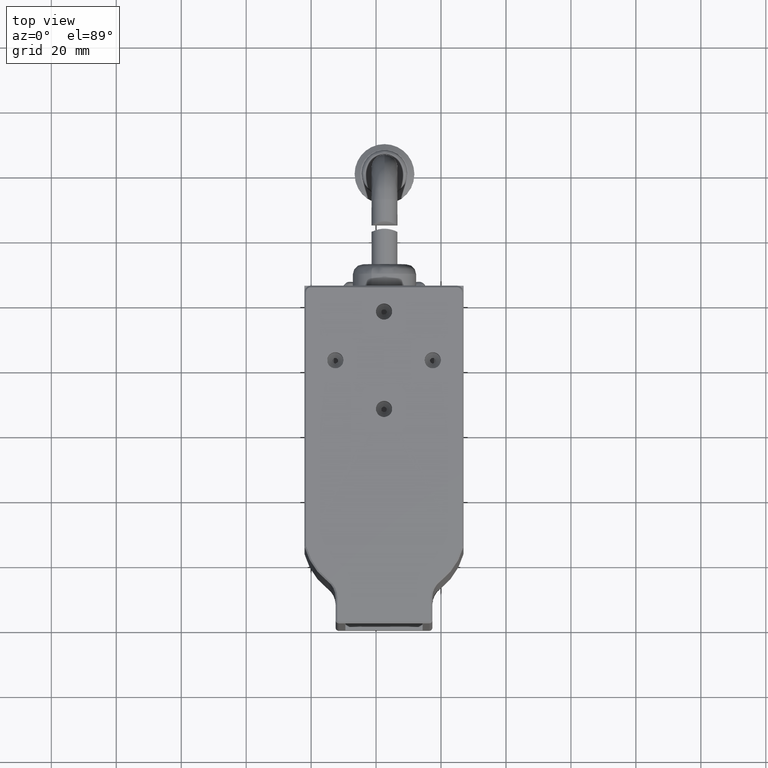
[diagram: clean part render]
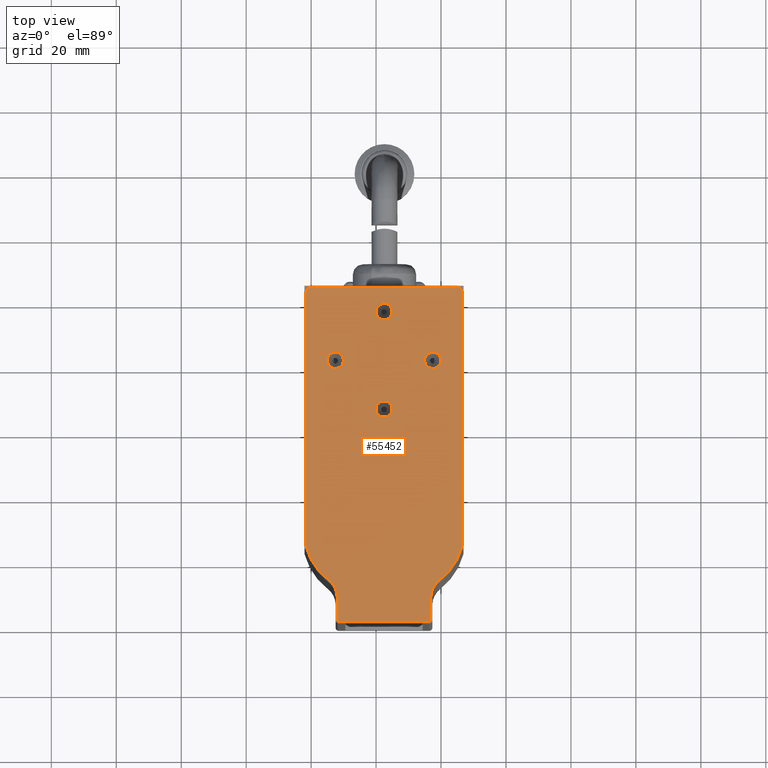
[diagram: same view with one face highlighted and labeled with its STEP entity id]
A machine part, top view. The second image highlights one B-rep face of the part: STEP entity #55452.
In plain terms, the highlighted planar face has unit normal (-0, 0, -1).
Its self-contained STEP definition (entity closure, byte-faithful):
#587 = EDGE_CURVE ( 'NONE', #10936, #11295, #15728, .T. ) ;
#777 = LINE ( 'NONE', #45958, #72016 ) ;
#1180 = EDGE_CURVE ( 'NONE', #9512, #34082, #777, .T. ) ;
#1209 = AXIS2_PLACEMENT_3D ( 'NONE', #61880, #44404, #49933 ) ;
#1315 = DIRECTION ( 'NONE',  ( 0.0000000000000000000, -1.000000000000000000, 0.0000000000000000000 ) ) ;
#2046 = CARTESIAN_POINT ( 'NONE',  ( -37.56201180637544500, 36.00452420306967800, 66.99999999999998600 ) ) ;
#2864 = AXIS2_PLACEMENT_3D ( 'NONE', #37116, #64850, #20638 ) ;
#2879 = DIRECTION ( 'NONE',  ( 0.0000000000000000000, 0.0000000000000000000, -1.000000000000000000 ) ) ;
#3581 = AXIS2_PLACEMENT_3D ( 'NONE', #62846, #67934, #19075 ) ;
#4022 = EDGE_CURVE ( 'NONE', #17294, #9512, #9456, .T. ) ;
#4294 = AXIS2_PLACEMENT_3D ( 'NONE', #44210, #55578, #33441 ) ;
#5082 = CARTESIAN_POINT ( 'NONE',  ( -51.96201180634700700, -58.99547579693080500, 67.00000000002840700 ) ) ;
#5179 = LINE ( 'NONE', #24025, #20760 ) ;
#5791 = DIRECTION ( 'NONE',  ( 0.0000000000000000000, 1.000000000000000000, 0.0000000000000000000 ) ) ;
#6021 = EDGE_LOOP ( 'NONE', ( #13859, #51286, #67947, #63671, #29035, #22526, #25639, #59684, #62740, #25306, #17860, #34806, #8612, #65221 ) ) ;
#7105 = VERTEX_POINT ( 'NONE', #5082 ) ;
#8033 = AXIS2_PLACEMENT_3D ( 'NONE', #25557, #64942, #54017 ) ;
#8612 = ORIENTED_EDGE ( 'NONE', *, *, #1180, .F. ) ;
#9456 = CIRCLE ( 'NONE', #31399, 6.500000000024493300 ) ;
#9512 = VERTEX_POINT ( 'NONE', #23707 ) ;
#9551 = DIRECTION ( 'NONE',  ( 0.0000000000000000000, 7.395570986446985700E-032, 1.000000000000000000 ) ) ;
#10027 = DIRECTION ( 'NONE',  ( 0.0000000000000000000, 0.0000000000000000000, -1.000000000000000000 ) ) ;
#10217 = EDGE_CURVE ( 'NONE', #23744, #47984, #38309, .T. ) ;
#10465 = CARTESIAN_POINT ( 'NONE',  ( -51.46201180637542900, -59.49547579691007100, 67.00000000005682900 ) ) ;
#10936 = VERTEX_POINT ( 'NONE', #55096 ) ;
#10949 = DIRECTION ( 'NONE',  ( 0.0000000000000000000, -1.000000000000000000, 0.0000000000000000000 ) ) ;
#11295 = VERTEX_POINT ( 'NONE', #31074 ) ;
#11596 = VERTEX_POINT ( 'NONE', #30513 ) ;
#11625 = AXIS2_PLACEMENT_3D ( 'NONE', #2046, #12209, #1315 ) ;
#11639 = EDGE_CURVE ( 'NONE', #34082, #22521, #38929, .T. ) ;
#12209 = DIRECTION ( 'NONE',  ( 0.0000000000000000000, 7.395570986446985700E-032, 1.000000000000000000 ) ) ;
#12299 = DIRECTION ( 'NONE',  ( 0.0000000000000000000, -1.000000000000000000, 0.0000000000000000000 ) ) ;
#12428 = EDGE_CURVE ( 'NONE', #47984, #13759, #29902, .T. ) ;
#13269 = CARTESIAN_POINT ( 'NONE',  ( -23.16201180632453600, -58.99547579693030700, 67.00000000005682900 ) ) ;
#13759 = VERTEX_POINT ( 'NONE', #46730 ) ;
#13859 = ORIENTED_EDGE ( 'NONE', *, *, #53636, .F. ) ;
#13938 = CARTESIAN_POINT ( 'NONE',  ( -22.56201180637544500, 18.50452420306967800, 66.99999999999998600 ) ) ;
#14286 = EDGE_CURVE ( 'NONE', #11295, #21680, #71996, .T. ) ;
#14412 = VERTEX_POINT ( 'NONE', #52477 ) ;
#14607 = EDGE_CURVE ( 'NONE', #63004, #7105, #57950, .T. ) ;
#15561 = VERTEX_POINT ( 'NONE', #49842 ) ;
#15606 = CARTESIAN_POINT ( 'NONE',  ( -32.52352040778300300, -31.14253440928075600, 66.99999999999997200 ) ) ;
#15728 = CIRCLE ( 'NONE', #66990, 19.63422404230373900 ) ;
#15940 = DIRECTION ( 'NONE',  ( 0.0000000000000000000, -1.000000000000000000, 0.0000000000000000000 ) ) ;
#15946 = CARTESIAN_POINT ( 'NONE',  ( -52.56201180637544500, 23.50452420306968200, 66.99999999999998600 ) ) ;
#17130 = CIRCLE ( 'NONE', #30734, 2.499999999999998700 ) ;
#17294 = VERTEX_POINT ( 'NONE', #28234 ) ;
#17662 = LINE ( 'NONE', #21757, #35890 ) ;
#17675 = CARTESIAN_POINT ( 'NONE',  ( -13.56201180638113400, 42.00452420306967100, 67.00000000000568400 ) ) ;
#17860 = ORIENTED_EDGE ( 'NONE', *, *, #24005, .F. ) ;
#19075 = DIRECTION ( 'NONE',  ( 0.0000000000000000000, 1.000000000000000000, 7.395570986446985700E-032 ) ) ;
#19427 = CIRCLE ( 'NONE', #40558, 2.499999999999998700 ) ;
#20138 = CIRCLE ( 'NONE', #2864, 2.499999999999998700 ) ;
#20216 = DIRECTION ( 'NONE',  ( 0.0000000000000000000, -1.000000000000000000, 0.0000000000000000000 ) ) ;
#20429 = ORIENTED_EDGE ( 'NONE', *, *, #39782, .F. ) ;
#20511 = CARTESIAN_POINT ( 'NONE',  ( -16.66201180637543500, -51.91295114031439100, 66.99999999999998600 ) ) ;
#20563 = FACE_BOUND ( 'NONE', #69362, .T. ) ;
#20597 = AXIS2_PLACEMENT_3D ( 'NONE', #24538, #23863, #29627 ) ;
#20638 = DIRECTION ( 'NONE',  ( 0.0000000000000000000, -1.000000000000000000, 0.0000000000000000000 ) ) ;
#20760 = VECTOR ( 'NONE', #52212, 1000.000000000000000 ) ;
#21076 = EDGE_CURVE ( 'NONE', #65628, #67103, #41418, .T. ) ;
#21608 = EDGE_CURVE ( 'NONE', #63935, #10936, #43918, .T. ) ;
#21680 = VERTEX_POINT ( 'NONE', #29455 ) ;
#21757 = CARTESIAN_POINT ( 'NONE',  ( -51.96201180637542900, -7.995475796930315400, 66.99999999999998600 ) ) ;
#21900 = VERTEX_POINT ( 'NONE', #36737 ) ;
#22521 = VERTEX_POINT ( 'NONE', #25696 ) ;
#22526 = ORIENTED_EDGE ( 'NONE', *, *, #14286, .F. ) ;
#23114 = DIRECTION ( 'NONE',  ( -0.0000000000000000000, -1.000000000000000000, -7.395570986446985700E-032 ) ) ;
#23201 = EDGE_LOOP ( 'NONE', ( #46023, #54843 ) ) ;
#23404 = EDGE_CURVE ( 'NONE', #21900, #11596, #63483, .T. ) ;
#23612 = CARTESIAN_POINT ( 'NONE',  ( -52.56201180637544500, 21.00452420306968200, 66.99999999999998600 ) ) ;
#23707 = CARTESIAN_POINT ( 'NONE',  ( -23.16201180638386600, -51.91295114031438400, 66.99999999999998600 ) ) ;
#23744 = VERTEX_POINT ( 'NONE', #71208 ) ;
#23863 = DIRECTION ( 'NONE',  ( 0.0000000000000000000, 7.395570986446985700E-032, 1.000000000000000000 ) ) ;
#24005 = EDGE_CURVE ( 'NONE', #22521, #63004, #5179, .T. ) ;
#24025 = CARTESIAN_POINT ( 'NONE',  ( -37.56201180637544500, -59.49547579693031500, 66.99999999999998600 ) ) ;
#24286 = CARTESIAN_POINT ( 'NONE',  ( -61.56201180637545200, -7.995475796930315400, 66.99999999999998600 ) ) ;
#24538 = CARTESIAN_POINT ( 'NONE',  ( -37.56201180637544500, 36.00452420306967800, 66.99999999999998600 ) ) ;
#25284 = CARTESIAN_POINT ( 'NONE',  ( -37.56201180637543800, 6.004524203069681900, 66.99999999999998600 ) ) ;
#25306 = ORIENTED_EDGE ( 'NONE', *, *, #14607, .F. ) ;
#25557 = CARTESIAN_POINT ( 'NONE',  ( -60.06201180637545200, 42.00452420306967100, 66.99999999995452500 ) ) ;
#25639 = ORIENTED_EDGE ( 'NONE', *, *, #587, .F. ) ;
#25696 = CARTESIAN_POINT ( 'NONE',  ( -23.66201180637547100, -59.49547579690188600, 67.00000000002840700 ) ) ;
#25857 = CIRCLE ( 'NONE', #41999, 2.499999999999998700 ) ;
#25859 = DIRECTION ( 'NONE',  ( 0.0000000000000000000, 7.395570986446985700E-032, 1.000000000000000000 ) ) ;
#26238 = DIRECTION ( 'NONE',  ( 0.0000000000000000000, 0.0000000000000000000, -1.000000000000000000 ) ) ;
#27024 = EDGE_CURVE ( 'NONE', #30852, #15561, #20138, .T. ) ;
#27157 = DIRECTION ( 'NONE',  ( 0.0000000000000000000, 7.395570986446985700E-032, 1.000000000000000000 ) ) ;
#27532 = VECTOR ( 'NONE', #52238, 1000.000000000000000 ) ;
#27705 = CARTESIAN_POINT ( 'NONE',  ( -51.96201180638706800, -51.91295114031437700, 67.00000000000142100 ) ) ;
#27905 = CARTESIAN_POINT ( 'NONE',  ( -52.56201180637544500, 21.00452420306968200, 66.99999999999998600 ) ) ;
#28234 = CARTESIAN_POINT ( 'NONE',  ( -20.60702298184854100, -46.74701590786730100, 66.99999999999998600 ) ) ;
#28667 = AXIS2_PLACEMENT_3D ( 'NONE', #56269, #34368, #12299 ) ;
#29035 = ORIENTED_EDGE ( 'NONE', *, *, #48630, .F. ) ;
#29455 = CARTESIAN_POINT ( 'NONE',  ( -61.56201180642899800, 42.00452420306967100, 66.99999999999147300 ) ) ;
#29627 = DIRECTION ( 'NONE',  ( 0.0000000000000000000, -1.000000000000000000, 0.0000000000000000000 ) ) ;
#29902 = LINE ( 'NONE', #61559, #38621 ) ;
#30513 = CARTESIAN_POINT ( 'NONE',  ( -37.56201180637544500, 33.50452420306967800, 66.99999999999998600 ) ) ;
#30734 = AXIS2_PLACEMENT_3D ( 'NONE', #65483, #25859, #15940 ) ;
#30852 = VERTEX_POINT ( 'NONE', #13938 ) ;
#31074 = CARTESIAN_POINT ( 'NONE',  ( -61.56201180637545200, -36.23801724235212200, 66.99999999999998600 ) ) ;
#31399 = AXIS2_PLACEMENT_3D ( 'NONE', #20511, #48188, #42672 ) ;
#32311 = EDGE_LOOP ( 'NONE', ( #36019, #20429 ) ) ;
#32740 = AXIS2_PLACEMENT_3D ( 'NONE', #27905, #27157, #10949 ) ;
#32882 = EDGE_CURVE ( 'NONE', #67103, #65628, #25857, .T. ) ;
#32945 = EDGE_CURVE ( 'NONE', #11596, #21900, #53725, .T. ) ;
#33046 = DIRECTION ( 'NONE',  ( 0.0000000000000000000, 1.000000000000000000, 0.0000000000000000000 ) ) ;
#33441 = DIRECTION ( 'NONE',  ( 0.0000000000000000000, 1.000000000000000000, 0.0000000000000000000 ) ) ;
#34082 = VERTEX_POINT ( 'NONE', #13269 ) ;
#34368 = DIRECTION ( 'NONE',  ( 0.0000000000000000000, 7.395570986446985700E-032, 1.000000000000000000 ) ) ;
#34466 = FACE_BOUND ( 'NONE', #70993, .T. ) ;
#34806 = ORIENTED_EDGE ( 'NONE', *, *, #11639, .F. ) ;
#35890 = VECTOR ( 'NONE', #49425, 1000.000000000000000 ) ;
#36019 = ORIENTED_EDGE ( 'NONE', *, *, #53549, .F. ) ;
#36737 = CARTESIAN_POINT ( 'NONE',  ( -37.56201180637544500, 38.50452420306967100, 66.99999999999998600 ) ) ;
#37116 = CARTESIAN_POINT ( 'NONE',  ( -22.56201180637544500, 21.00452420306967500, 66.99999999999998600 ) ) ;
#37966 = CARTESIAN_POINT ( 'NONE',  ( -37.56201180637544500, 43.50452420306967800, 66.99999999999998600 ) ) ;
#38309 = CIRCLE ( 'NONE', #63005, 1.499999999964529700 ) ;
#38621 = VECTOR ( 'NONE', #39164, 1000.000000000000000 ) ;
#38908 = CARTESIAN_POINT ( 'NONE',  ( -52.56201180637544500, 18.50452420306968500, 66.99999999999998600 ) ) ;
#38929 = CIRCLE ( 'NONE', #57027, 0.5000000000571214200 ) ;
#39164 = DIRECTION ( 'NONE',  ( -0.0000000000000000000, -1.000000000000000000, -7.395570986446985700E-032 ) ) ;
#39238 = DIRECTION ( 'NONE',  ( 0.0000000000000000000, 0.0000000000000000000, -1.000000000000000000 ) ) ;
#39453 = CARTESIAN_POINT ( 'NONE',  ( -42.60050320496788600, -31.14253440928075600, 66.99999999999998600 ) ) ;
#39782 = EDGE_CURVE ( 'NONE', #14412, #72024, #61748, .T. ) ;
#40358 = DIRECTION ( 'NONE',  ( 0.0000000000000000000, -1.000000000000000000, 0.0000000000000000000 ) ) ;
#40558 = AXIS2_PLACEMENT_3D ( 'NONE', #25284, #9551, #20216 ) ;
#41418 = CIRCLE ( 'NONE', #32740, 2.499999999999998700 ) ;
#41999 = AXIS2_PLACEMENT_3D ( 'NONE', #23612, #62522, #40358 ) ;
#42251 = VERTEX_POINT ( 'NONE', #42509 ) ;
#42509 = CARTESIAN_POINT ( 'NONE',  ( -60.06201180637548700, 43.50452420309240900, 66.99999999997726300 ) ) ;
#42672 = DIRECTION ( 'NONE',  ( 0.0000000000000000000, -1.000000000000000000, 0.0000000000000000000 ) ) ;
#42704 = ORIENTED_EDGE ( 'NONE', *, *, #23404, .F. ) ;
#43329 = ORIENTED_EDGE ( 'NONE', *, *, #32882, .F. ) ;
#43572 = DIRECTION ( 'NONE',  ( 0.0000000000000000000, 1.000000000000000000, 0.0000000000000000000 ) ) ;
#43687 = CARTESIAN_POINT ( 'NONE',  ( -37.56201180637543800, 3.504524203069682800, 66.99999999999998600 ) ) ;
#43918 = CIRCLE ( 'NONE', #1209, 6.499999999998923500 ) ;
#44210 = CARTESIAN_POINT ( 'NONE',  ( -51.46201180637542900, -58.99547579693013700, 67.00000000005682900 ) ) ;
#44404 = DIRECTION ( 'NONE',  ( 0.0000000000000000000, 0.0000000000000000000, 1.000000000000000000 ) ) ;
#44924 = FACE_BOUND ( 'NONE', #32311, .T. ) ;
#45958 = CARTESIAN_POINT ( 'NONE',  ( -23.16201180637547100, -7.995475796930315400, 66.99999999999998600 ) ) ;
#46023 = ORIENTED_EDGE ( 'NONE', *, *, #27024, .F. ) ;
#46730 = CARTESIAN_POINT ( 'NONE',  ( -13.56201180637544100, -36.23801724235215700, 66.99999999999997200 ) ) ;
#46819 = CARTESIAN_POINT ( 'NONE',  ( -23.66201180637546400, -58.99547579693013700, 67.00000000005682900 ) ) ;
#47984 = VERTEX_POINT ( 'NONE', #17675 ) ;
#48188 = DIRECTION ( 'NONE',  ( -3.061867145894407900E-046, 5.736400274741753000E-031, 1.000000000000000000 ) ) ;
#48630 = EDGE_CURVE ( 'NONE', #21680, #42251, #53006, .T. ) ;
#48864 = LINE ( 'NONE', #37966, #53220 ) ;
#49425 = DIRECTION ( 'NONE',  ( 0.0000000000000000000, 1.000000000000000000, 7.395570986446985700E-032 ) ) ;
#49842 = CARTESIAN_POINT ( 'NONE',  ( -22.56201180637544500, 23.50452420306967500, 66.99999999999998600 ) ) ;
#49933 = DIRECTION ( 'NONE',  ( 0.0000000000000000000, -1.000000000000000000, 0.0000000000000000000 ) ) ;
#51286 = ORIENTED_EDGE ( 'NONE', *, *, #12428, .F. ) ;
#51317 = AXIS2_PLACEMENT_3D ( 'NONE', #15606, #10027, #33046 ) ;
#52212 = DIRECTION ( 'NONE',  ( -1.000000000000000000, -7.211931072580400500E-094, 9.751689336491907800E-063 ) ) ;
#52238 = DIRECTION ( 'NONE',  ( 0.0000000000000000000, 1.000000000000000000, 7.395570986446985700E-032 ) ) ;
#52477 = CARTESIAN_POINT ( 'NONE',  ( -37.56201180637543800, 8.504524203069680200, 66.99999999999998600 ) ) ;
#53006 = CIRCLE ( 'NONE', #8033, 1.500000000021373100 ) ;
#53220 = VECTOR ( 'NONE', #70828, 1000.000000000000000 ) ;
#53549 = EDGE_CURVE ( 'NONE', #72024, #14412, #19427, .T. ) ;
#53636 = EDGE_CURVE ( 'NONE', #13759, #17294, #55890, .T. ) ;
#53725 = CIRCLE ( 'NONE', #20597, 2.499999999999995100 ) ;
#54017 = DIRECTION ( 'NONE',  ( 0.0000000000000000000, 1.000000000000000000, 0.0000000000000000000 ) ) ;
#54843 = ORIENTED_EDGE ( 'NONE', *, *, #64919, .F. ) ;
#55096 = CARTESIAN_POINT ( 'NONE',  ( -54.51700063089501900, -46.74701590789634100, 67.00000000001563200 ) ) ;
#55452 = ADVANCED_FACE ( 'NONE', ( #68394, #20563, #66647, #34466, #44924 ), #62618, .F. ) ;
#55578 = DIRECTION ( 'NONE',  ( 0.0000000000000000000, 0.0000000000000000000, -1.000000000000000000 ) ) ;
#55890 = CIRCLE ( 'NONE', #51317, 19.63422404230374200 ) ;
#56269 = CARTESIAN_POINT ( 'NONE',  ( -37.56201180637543800, 6.004524203069681900, 66.99999999999998600 ) ) ;
#57027 = AXIS2_PLACEMENT_3D ( 'NONE', #46819, #2879, #68699 ) ;
#57867 = EDGE_CURVE ( 'NONE', #7105, #63935, #17662, .T. ) ;
#57950 = CIRCLE ( 'NONE', #4294, 0.5000000000002780000 ) ;
#59684 = ORIENTED_EDGE ( 'NONE', *, *, #21608, .F. ) ;
#61559 = CARTESIAN_POINT ( 'NONE',  ( -13.56201180637544500, -7.995475796930315400, 66.99999999999998600 ) ) ;
#61748 = CIRCLE ( 'NONE', #28667, 2.499999999999998700 ) ;
#61880 = CARTESIAN_POINT ( 'NONE',  ( -58.46201180637545700, -51.91295114031439100, 67.00000000003126400 ) ) ;
#62522 = DIRECTION ( 'NONE',  ( 0.0000000000000000000, 7.395570986446985700E-032, 1.000000000000000000 ) ) ;
#62618 = PLANE ( 'NONE',  #3581 ) ;
#62740 = ORIENTED_EDGE ( 'NONE', *, *, #57867, .F. ) ;
#62846 = CARTESIAN_POINT ( 'NONE',  ( -37.56201180637544500, -7.995475796930315400, 66.99999999999998600 ) ) ;
#63004 = VERTEX_POINT ( 'NONE', #10465 ) ;
#63005 = AXIS2_PLACEMENT_3D ( 'NONE', #71246, #26238, #43572 ) ;
#63393 = ORIENTED_EDGE ( 'NONE', *, *, #32945, .F. ) ;
#63483 = CIRCLE ( 'NONE', #11625, 2.499999999999995100 ) ;
#63671 = ORIENTED_EDGE ( 'NONE', *, *, #69733, .F. ) ;
#63935 = VERTEX_POINT ( 'NONE', #27705 ) ;
#64850 = DIRECTION ( 'NONE',  ( 0.0000000000000000000, 7.395570986446985700E-032, 1.000000000000000000 ) ) ;
#64919 = EDGE_CURVE ( 'NONE', #15561, #30852, #17130, .T. ) ;
#64942 = DIRECTION ( 'NONE',  ( 0.0000000000000000000, 0.0000000000000000000, -1.000000000000000000 ) ) ;
#65221 = ORIENTED_EDGE ( 'NONE', *, *, #4022, .F. ) ;
#65483 = CARTESIAN_POINT ( 'NONE',  ( -22.56201180637544500, 21.00452420306967500, 66.99999999999998600 ) ) ;
#65628 = VERTEX_POINT ( 'NONE', #38908 ) ;
#66647 = FACE_BOUND ( 'NONE', #23201, .T. ) ;
#66990 = AXIS2_PLACEMENT_3D ( 'NONE', #39453, #39238, #5791 ) ;
#67103 = VERTEX_POINT ( 'NONE', #15946 ) ;
#67934 = DIRECTION ( 'NONE',  ( -9.751689336491907800E-063, 7.395570986446985700E-032, -1.000000000000000000 ) ) ;
#67947 = ORIENTED_EDGE ( 'NONE', *, *, #10217, .F. ) ;
#68394 = FACE_OUTER_BOUND ( 'NONE', #6021, .T. ) ;
#68699 = DIRECTION ( 'NONE',  ( 0.0000000000000000000, 1.000000000000000000, 0.0000000000000000000 ) ) ;
#68713 = ORIENTED_EDGE ( 'NONE', *, *, #21076, .F. ) ;
#69362 = EDGE_LOOP ( 'NONE', ( #68713, #43329 ) ) ;
#69733 = EDGE_CURVE ( 'NONE', #42251, #23744, #48864, .T. ) ;
#70828 = DIRECTION ( 'NONE',  ( 1.000000000000000000, 7.211931072580400500E-094, -9.751689336491907800E-063 ) ) ;
#70993 = EDGE_LOOP ( 'NONE', ( #63393, #42704 ) ) ;
#71208 = CARTESIAN_POINT ( 'NONE',  ( -15.06201180637544600, 43.50452420304944200, 67.00000000001989500 ) ) ;
#71246 = CARTESIAN_POINT ( 'NONE',  ( -15.06201180637544600, 42.00452420306967100, 67.00000000001136900 ) ) ;
#71996 = LINE ( 'NONE', #24286, #27532 ) ;
#72016 = VECTOR ( 'NONE', #23114, 1000.000000000000000 ) ;
#72024 = VERTEX_POINT ( 'NONE', #43687 ) ;